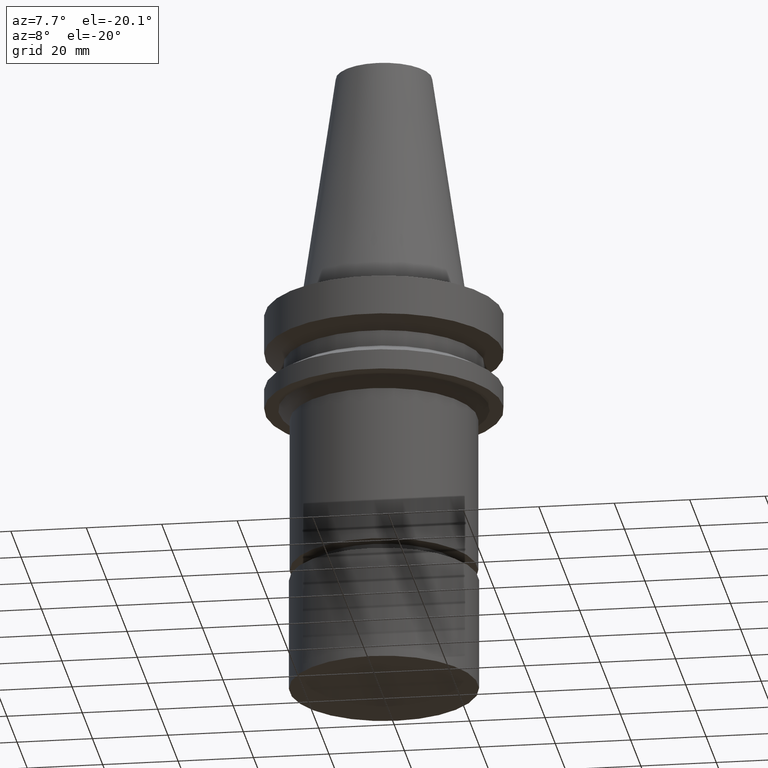
[diagram: clean part render]
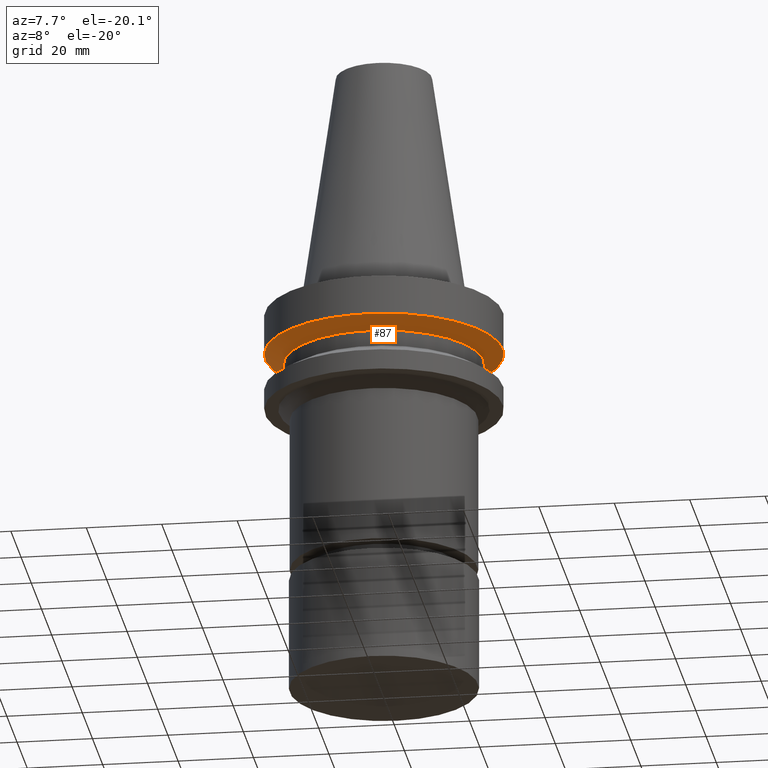
[diagram: same view with one face highlighted and labeled with its STEP entity id]
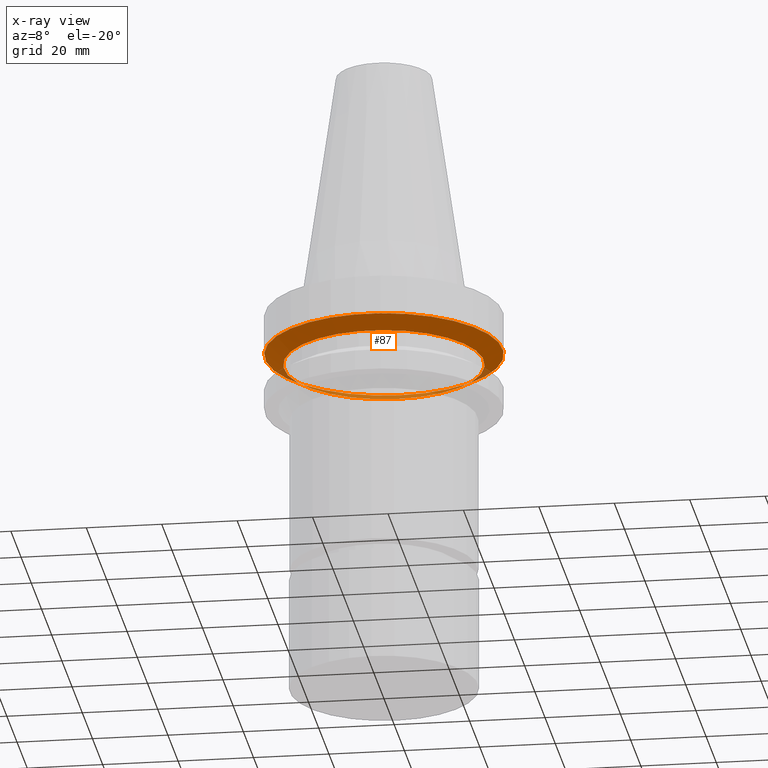
[diagram: x-ray of the same camera — body ghosted, the highlighted face saturated]
A machine part, auxiliary view. The second image highlights one B-rep face of the part: STEP entity #87.
The next image is the same camera in x-ray: the body ghosted, the highlighted face saturated — about 12% of this face is hidden behind the body in this view.
In plain terms, the highlighted conical surface has half-angle 60 deg.
Its self-contained STEP definition (entity closure, byte-faithful):
#87=ADVANCED_FACE('Unnamed[1]',(#218,#219),#220,.T.);
#89=EDGE_CURVE('Unnamed[1]',#222,#222,#223,.T.);
#141=EDGE_CURVE('Unnamed[1]',#303,#303,#304,.T.);
#218=FACE_BOUND('',#397,.T.);
#219=FACE_BOUND('',#398,.T.);
#220=CONICAL_SURFACE('',#399,28.9999999999998,1.04719755119657);
#222=VERTEX_POINT('',#402);
#223=CIRCLE('',#403,31.5000000000003);
#303=VERTEX_POINT('',#502);
#304=CIRCLE('',#503,26.4999999999994);
#397=EDGE_LOOP('',(#597));
#398=EDGE_LOOP('',(#598));
#399=AXIS2_PLACEMENT_3D('',#599,#600,#601);
#402=CARTESIAN_POINT('',(7.08182973902924E-016,31.5000000000004,-11.5655056526664));
#403=AXIS2_PLACEMENT_3D('',#602,#603,#604);
#502=CARTESIAN_POINT('',(8.8494551369045E-016,26.4999999999995,-14.4522569986152));
#503=AXIS2_PLACEMENT_3D('',#692,#693,#694);
#597=ORIENTED_EDGE('',*,*,#141,.F.);
#598=ORIENTED_EDGE('',*,*,#89,.T.);
#599=CARTESIAN_POINT('',(7.96564243796687E-016,7.56648653851434E-014,-13.0088813256408));
#600=DIRECTION('',(-6.12323399573677E-017,1.89333969124914E-017,1.0));
#601=DIRECTION('',(-3.66781653447154E-033,1.0,-1.89333969124914E-017));
#602=CARTESIAN_POINT('',(7.08182973902924E-016,7.56921933896537E-014,-11.5655056526664));
#603=DIRECTION('',(6.12323399573677E-017,-1.89333969125389E-017,-1.0));
#604=DIRECTION('',(-3.66781653446932E-033,1.0,-1.89333969125389E-017));
#692=CARTESIAN_POINT('',(8.8494551369045E-016,7.56375373806331E-014,-14.4522569986152));
#693=DIRECTION('',(6.12323399573677E-017,-1.89333969125569E-017,-1.0));
#694=DIRECTION('',(-3.6678165344674E-033,1.0,-1.89333969125569E-017));